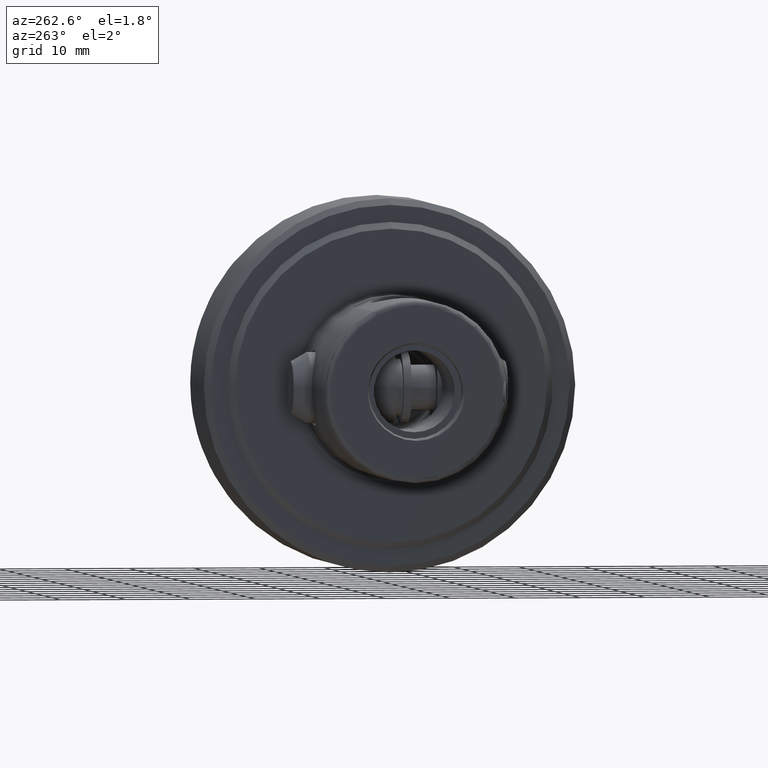
[diagram: clean part render]
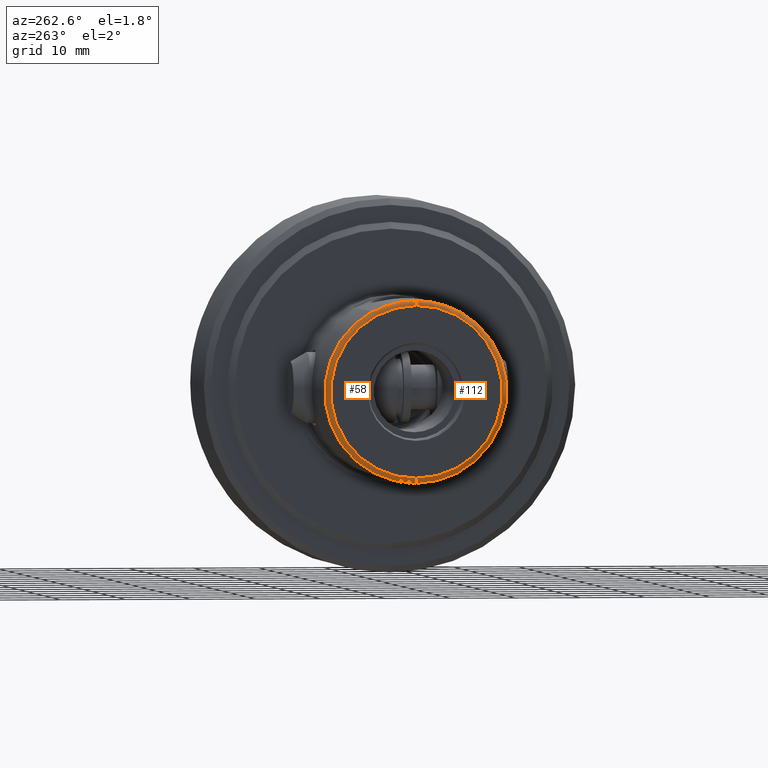
[diagram: same view with one multi-face feature highlighted, each face labeled with its STEP entity id]
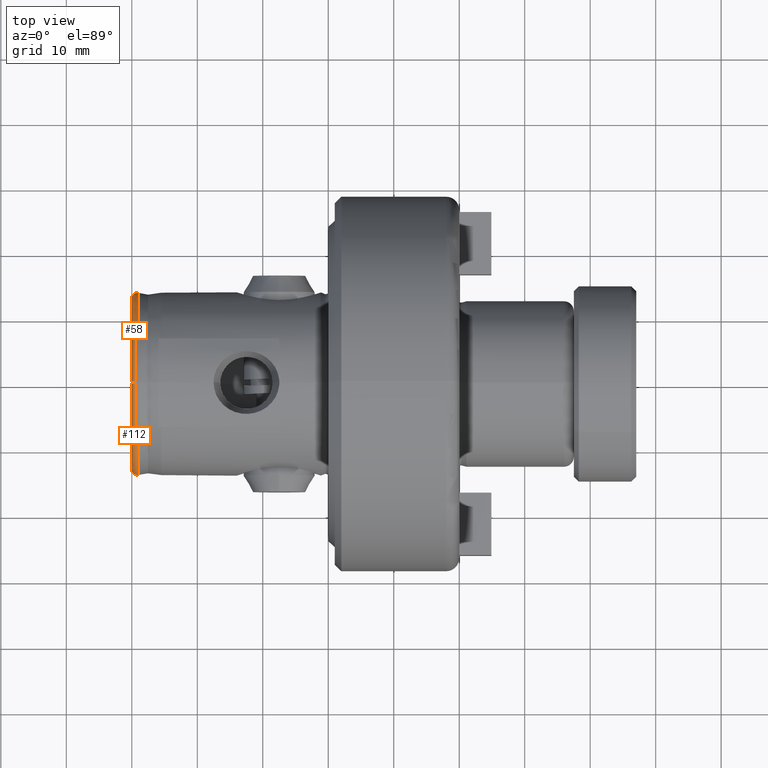
[diagram: same view with one multi-face feature highlighted, each face labeled with its STEP entity id]
A machine part, auxiliary view. The highlighted faces form ONE feature: a constant-radius fillet chain: 2 tangent blend faces with common blend radius 0.8 mm. The faces share edges in the B-rep.
A second angle (top view) of the same feature is appended — it is thin or edge-on in the first view.
Their STEP definitions:
[1] entity #58 (Torus):
#38 = DIRECTION ( 'NONE',  ( -1.000000000000000000, -0.0000000000000000000, -0.0000000000000000000 ) ) ;
#58 = ADVANCED_FACE ( 'NONE', ( #5254 ), #3467, .T. ) ;
#185 = CIRCLE ( 'NONE', #4675, 13.19999999999999600 ) ;
#331 = CARTESIAN_POINT ( 'NONE',  ( 0.8645590794477491200, 6.750000000000001800, 12.26639193067282800 ) ) ;
#431 = CARTESIAN_POINT ( 'NONE',  ( 0.4727386365609338400, 1.132378441801121900E-011, 13.93000000000000000 ) ) ;
#466 = CARTESIAN_POINT ( 'NONE',  ( 0.4929152081133564300, 6.750000000000002700, 12.19529657203607800 ) ) ;
#550 = CARTESIAN_POINT ( 'NONE',  ( 0.8000000000000000400, 0.0000000000000000000, 0.0000000000000000000 ) ) ;
#792 = CARTESIAN_POINT ( 'NONE',  ( 0.4894722717468362200, 6.232143164146207500, 12.48029038539261000 ) ) ;
#936 = EDGE_CURVE ( 'NONE', #5385, #2716, #7338, .T. ) ;
#1129 = ORIENTED_EDGE ( 'NONE', *, *, #2260, .F. ) ;
#1855 = CARTESIAN_POINT ( 'NONE',  ( -7.589415207398531000E-016, 0.0000000000000000000, 0.0000000000000000000 ) ) ;
#1955 = CARTESIAN_POINT ( 'NONE',  ( 0.4727386365609338400, 1.132378441801121900E-011, 13.93000000000000000 ) ) ;
#1973 = EDGE_CURVE ( 'NONE', #7009, #5385, #5504, .T. ) ;
#2080 = EDGE_CURVE ( 'NONE', #7009, #5379, #4514, .T. ) ;
#2105 = CARTESIAN_POINT ( 'NONE',  ( 0.4929152081133564300, 6.750000000000002700, 12.19529657203607800 ) ) ;
#2141 = CARTESIAN_POINT ( 'NONE',  ( -7.589415207398531000E-016, 1.664775441374581700E-015, -13.19999999999999600 ) ) ;
#2159 = CARTESIAN_POINT ( 'NONE',  ( 0.7871886784473950400, 6.750000000000003600, 12.26930041254756900 ) ) ;
#2260 = EDGE_CURVE ( 'NONE', #5148, #2716, #185, .T. ) ;
#2339 = CARTESIAN_POINT ( 'NONE',  ( 0.9389185421335446400, 1.713017107874657800E-015, -13.98784620240976500 ) ) ;
#2484 = DIRECTION ( 'NONE',  ( 0.0000000000000000000, 0.0000000000000000000, 1.000000000000000000 ) ) ;
#2551 = CARTESIAN_POINT ( 'NONE',  ( 0.4814279518564196200, 4.599682551581561400, 13.16597177784444000 ) ) ;
#2619 = ORIENTED_EDGE ( 'NONE', *, *, #2080, .F. ) ;
#2716 = VERTEX_POINT ( 'NONE', #2141 ) ;
#2802 = DIRECTION ( 'NONE',  ( 0.0000000000000000000, -1.224646799147353200E-016, 1.000000000000000000 ) ) ;
#2821 = DIRECTION ( 'NONE',  ( -0.0000000000000000000, 1.000000000000000000, 1.224646799147353200E-016 ) ) ;
#3124 = CARTESIAN_POINT ( 'NONE',  ( 0.4793567522449418400, 4.042877525685580200, 13.34622264103327500 ) ) ;
#3130 = EDGE_LOOP ( 'NONE', ( #7017, #3728, #1129, #6958, #5478, #2619 ) ) ;
#3357 = DIRECTION ( 'NONE',  ( 0.0000000000000000000, 0.0000000000000000000, -1.000000000000000000 ) ) ;
#3372 = CARTESIAN_POINT ( 'NONE',  ( 0.9389185421335446400, 0.0000000000000000000, 0.0000000000000000000 ) ) ;
#3400 = DIRECTION ( 'NONE',  ( 0.0000000000000000000, -1.000000000000000000, 0.0000000000000000000 ) ) ;
#3467 = TOROIDAL_SURFACE ( 'NONE', #4140, 13.19999999999999600, 0.8000000000000008200 ) ;
#3728 = ORIENTED_EDGE ( 'NONE', *, *, #936, .T. ) ;
#3805 = AXIS2_PLACEMENT_3D ( 'NONE', #7591, #3400, #3357 ) ;
#3852 = CARTESIAN_POINT ( 'NONE',  ( 0.4731580748601720800, 1.179496486771234100, 13.89249825202183800 ) ) ;
#3971 = DIRECTION ( 'NONE',  ( -1.000000000000000000, -0.0000000000000000000, -0.0000000000000000000 ) ) ;
#4042 = CARTESIAN_POINT ( 'NONE',  ( 0.5621892141630505700, 6.750000000000002700, 12.22821070456285000 ) ) ;
#4082 = CARTESIAN_POINT ( 'NONE',  ( 0.9389185421335446400, 6.750000000000004400, 12.25142201469973100 ) ) ;
#4140 = AXIS2_PLACEMENT_3D ( 'NONE', #550, #38, #2484 ) ;
#4239 = DIRECTION ( 'NONE',  ( 0.0000000000000000000, 0.0000000000000000000, 1.000000000000000000 ) ) ;
#4330 = EDGE_CURVE ( 'NONE', #5379, #6302, #5123, .T. ) ;
#4514 = B_SPLINE_CURVE_WITH_KNOTS ( 'NONE', 3,
 ( #5185, #331, #2159, #4599, #4042, #2105 ),
 .UNSPECIFIED., .F., .F.,
 ( 4, 2, 4 ),
 ( 0.004875116570112972100, 0.005101595919352251000, 0.005328075268591530800 ),
 .UNSPECIFIED. ) ;
#4599 = CARTESIAN_POINT ( 'NONE',  ( 0.6359658299911510300, 6.750000000000002700, 12.25010238498333600 ) ) ;
#4675 = AXIS2_PLACEMENT_3D ( 'NONE', #1855, #6648, #4239 ) ;
#5123 = B_SPLINE_CURVE_WITH_KNOTS ( 'NONE', 3,
 ( #5665, #792, #5644, #2551, #3124, #6240, #6861, #3852, #6778, #1955 ),
 .UNSPECIFIED., .F., .F.,
 ( 4, 2, 2, 2, 4 ),
 ( 2.279170844210833700E-007, 0.001770647102273941700, 0.003541066287463462600, 0.005311485472652983100, 0.007081904657842503500 ),
 .UNSPECIFIED. ) ;
#5148 = VERTEX_POINT ( 'NONE', #7478 ) ;
#5185 = CARTESIAN_POINT ( 'NONE',  ( 0.9389185421335446400, 6.750000000000004400, 12.25142201469973100 ) ) ;
#5254 = FACE_OUTER_BOUND ( 'NONE', #3130, .T. ) ;
#5366 = AXIS2_PLACEMENT_3D ( 'NONE', #3372, #3971, #7608 ) ;
#5379 = VERTEX_POINT ( 'NONE', #466 ) ;
#5385 = VERTEX_POINT ( 'NONE', #2339 ) ;
#5478 = ORIENTED_EDGE ( 'NONE', *, *, #4330, .F. ) ;
#5504 = CIRCLE ( 'NONE', #5366, 13.98784620240976500 ) ;
#5644 = CARTESIAN_POINT ( 'NONE',  ( 0.4864963569795217600, 5.696888112680258400, 12.73208945097716500 ) ) ;
#5665 = CARTESIAN_POINT ( 'NONE',  ( 0.4929152081133564300, 6.750000000000002700, 12.19529657203607800 ) ) ;
#5766 = CIRCLE ( 'NONE', #3805, 0.8000000000000003800 ) ;
#5774 = CARTESIAN_POINT ( 'NONE',  ( 0.8000000000000000400, 1.616533774874505800E-015, -13.19999999999999600 ) ) ;
#6240 = CARTESIAN_POINT ( 'NONE',  ( 0.4760502033241162900, 2.913435308332109000, 13.63590322983608000 ) ) ;
#6302 = VERTEX_POINT ( 'NONE', #431 ) ;
#6648 = DIRECTION ( 'NONE',  ( -1.000000000000000000, -0.0000000000000000000, -0.0000000000000000000 ) ) ;
#6739 = EDGE_CURVE ( 'NONE', #6302, #5148, #5766, .T. ) ;
#6778 = CARTESIAN_POINT ( 'NONE',  ( 0.4727386365609392300, 0.5867613276940799600, 13.92999999999952500 ) ) ;
#6861 = CARTESIAN_POINT ( 'NONE',  ( 0.4748152716050593200, 2.340796626378782300, 13.74532629198283700 ) ) ;
#6958 = ORIENTED_EDGE ( 'NONE', *, *, #6739, .F. ) ;
#7009 = VERTEX_POINT ( 'NONE', #4082 ) ;
#7017 = ORIENTED_EDGE ( 'NONE', *, *, #1973, .T. ) ;
#7256 = AXIS2_PLACEMENT_3D ( 'NONE', #5774, #2821, #2802 ) ;
#7338 = CIRCLE ( 'NONE', #7256, 0.8000000000000003800 ) ;
#7478 = CARTESIAN_POINT ( 'NONE',  ( -7.589415207398531000E-016, 0.0000000000000000000, 13.19999999999999600 ) ) ;
#7591 = CARTESIAN_POINT ( 'NONE',  ( 0.8000000000000000400, 0.0000000000000000000, 13.19999999999999600 ) ) ;
#7608 = DIRECTION ( 'NONE',  ( 0.0000000000000000000, 0.0000000000000000000, 1.000000000000000000 ) ) ;
[2] entity #112 (Torus):
#112 = ADVANCED_FACE ( 'NONE', ( #7349 ), #1751, .T. ) ;
#131 = CARTESIAN_POINT ( 'NONE',  ( 0.4814524739321879300, -4.605526879116308000, 13.16385748840265400 ) ) ;
#215 = CARTESIAN_POINT ( 'NONE',  ( 0.4894700447171464500, -6.231808193520813600, 12.48047473085147800 ) ) ;
#290 = ORIENTED_EDGE ( 'NONE', *, *, #6739, .T. ) ;
#431 = CARTESIAN_POINT ( 'NONE',  ( 0.4727386365609338400, 1.132378441801121900E-011, 13.93000000000000000 ) ) ;
#669 = VERTEX_POINT ( 'NONE', #1806 ) ;
#728 = EDGE_CURVE ( 'NONE', #2716, #5148, #6580, .T. ) ;
#936 = EDGE_CURVE ( 'NONE', #5385, #2716, #7338, .T. ) ;
#1330 = ORIENTED_EDGE ( 'NONE', *, *, #6631, .F. ) ;
#1415 = CARTESIAN_POINT ( 'NONE',  ( 0.4727386365609231300, -1.174282714772624200, 13.93000000000094700 ) ) ;
#1417 = CARTESIAN_POINT ( 'NONE',  ( 0.6360166110138139000, -6.750000000000000900, 12.25009233058448800 ) ) ;
#1751 = TOROIDAL_SURFACE ( 'NONE', #6154, 13.19999999999999600, 0.8000000000000008200 ) ;
#1777 = EDGE_CURVE ( 'NONE', #5385, #669, #2213, .T. ) ;
#1806 = CARTESIAN_POINT ( 'NONE',  ( 0.9389185421335405300, -6.750000000000000000, 12.25142201469977200 ) ) ;
#2059 = CARTESIAN_POINT ( 'NONE',  ( 0.4727386365609338400, 1.132378441801121900E-011, 13.93000000000000000 ) ) ;
#2141 = CARTESIAN_POINT ( 'NONE',  ( -7.589415207398531000E-016, 1.664775441374581700E-015, -13.19999999999999600 ) ) ;
#2213 = CIRCLE ( 'NONE', #7467, 13.98784620240976500 ) ;
#2339 = CARTESIAN_POINT ( 'NONE',  ( 0.9389185421335446400, 1.713017107874657800E-015, -13.98784620240976500 ) ) ;
#2417 = CARTESIAN_POINT ( 'NONE',  ( 0.4929152081133217300, -6.749999999999996400, 12.19529657203608200 ) ) ;
#2567 = CARTESIAN_POINT ( 'NONE',  ( 0.4793481883614230100, -4.041190702449638300, 13.34696217243495100 ) ) ;
#2629 = CARTESIAN_POINT ( 'NONE',  ( 0.8642009777304905400, -6.750000000000000900, 12.26646402307943800 ) ) ;
#2716 = VERTEX_POINT ( 'NONE', #2141 ) ;
#2802 = DIRECTION ( 'NONE',  ( 0.0000000000000000000, -1.224646799147353200E-016, 1.000000000000000000 ) ) ;
#2821 = DIRECTION ( 'NONE',  ( -0.0000000000000000000, 1.000000000000000000, 1.224646799147353200E-016 ) ) ;
#3026 = CARTESIAN_POINT ( 'NONE',  ( 0.9389185421335446400, 0.0000000000000000000, 0.0000000000000000000 ) ) ;
#3063 = DIRECTION ( 'NONE',  ( -1.000000000000000000, -0.0000000000000000000, -0.0000000000000000000 ) ) ;
#3222 = CARTESIAN_POINT ( 'NONE',  ( 0.7868371776198326300, -6.750000000000000000, 12.26927225712829600 ) ) ;
#3340 = ORIENTED_EDGE ( 'NONE', *, *, #936, .F. ) ;
#3357 = DIRECTION ( 'NONE',  ( 0.0000000000000000000, 0.0000000000000000000, -1.000000000000000000 ) ) ;
#3400 = DIRECTION ( 'NONE',  ( 0.0000000000000000000, -1.000000000000000000, 0.0000000000000000000 ) ) ;
#3697 = AXIS2_PLACEMENT_3D ( 'NONE', #6729, #4392, #6210 ) ;
#3753 = CARTESIAN_POINT ( 'NONE',  ( 0.5615467128745314000, -6.749999999999999100, 12.22790543316666000 ) ) ;
#3805 = AXIS2_PLACEMENT_3D ( 'NONE', #7591, #3400, #3357 ) ;
#3807 = CARTESIAN_POINT ( 'NONE',  ( 0.9389185421335405300, -6.750000000000000000, 12.25142201469977200 ) ) ;
#4244 = DIRECTION ( 'NONE',  ( 0.0000000000000000000, 0.0000000000000000000, 1.000000000000000000 ) ) ;
#4392 = DIRECTION ( 'NONE',  ( -1.000000000000000000, -0.0000000000000000000, -0.0000000000000000000 ) ) ;
#4727 = EDGE_CURVE ( 'NONE', #7877, #669, #7015, .T. ) ;
#5001 = CARTESIAN_POINT ( 'NONE',  ( 0.4865094222191128100, -5.699176667825200900, 12.73098617945237100 ) ) ;
#5148 = VERTEX_POINT ( 'NONE', #7478 ) ;
#5298 = ORIENTED_EDGE ( 'NONE', *, *, #1777, .T. ) ;
#5385 = VERTEX_POINT ( 'NONE', #2339 ) ;
#5766 = CIRCLE ( 'NONE', #3805, 0.8000000000000003800 ) ;
#5774 = CARTESIAN_POINT ( 'NONE',  ( 0.8000000000000000400, 1.616533774874505800E-015, -13.19999999999999600 ) ) ;
#5983 = DIRECTION ( 'NONE',  ( 0.0000000000000000000, 0.0000000000000000000, 1.000000000000000000 ) ) ;
#6154 = AXIS2_PLACEMENT_3D ( 'NONE', #7878, #3063, #4244 ) ;
#6210 = DIRECTION ( 'NONE',  ( 0.0000000000000000000, 0.0000000000000000000, 1.000000000000000000 ) ) ;
#6236 = CARTESIAN_POINT ( 'NONE',  ( 0.4929152081133217300, -6.749999999999996400, 12.19529657203608200 ) ) ;
#6302 = VERTEX_POINT ( 'NONE', #431 ) ;
#6580 = CIRCLE ( 'NONE', #3697, 13.19999999999999600 ) ;
#6631 = EDGE_CURVE ( 'NONE', #6302, #7877, #7752, .T. ) ;
#6729 = CARTESIAN_POINT ( 'NONE',  ( -7.589415207398531000E-016, 0.0000000000000000000, 0.0000000000000000000 ) ) ;
#6739 = EDGE_CURVE ( 'NONE', #6302, #5148, #5766, .T. ) ;
#6790 = CARTESIAN_POINT ( 'NONE',  ( 0.4929152081133217300, -6.749999999999996400, 12.19529657203608200 ) ) ;
#7015 = B_SPLINE_CURVE_WITH_KNOTS ( 'NONE', 3,
 ( #6236, #3753, #1417, #3222, #2629, #3807 ),
 .UNSPECIFIED., .F., .F.,
 ( 4, 2, 4 ),
 ( 8.632558505923890000E-005, 0.0003140090900236662200, 0.0005416925949880936000 ),
 .UNSPECIFIED. ) ;
#7141 = EDGE_LOOP ( 'NONE', ( #3340, #5298, #7867, #1330, #290, #7638 ) ) ;
#7256 = AXIS2_PLACEMENT_3D ( 'NONE', #5774, #2821, #2802 ) ;
#7263 = DIRECTION ( 'NONE',  ( -1.000000000000000000, -0.0000000000000000000, -0.0000000000000000000 ) ) ;
#7338 = CIRCLE ( 'NONE', #7256, 0.8000000000000003800 ) ;
#7349 = FACE_OUTER_BOUND ( 'NONE', #7141, .T. ) ;
#7467 = AXIS2_PLACEMENT_3D ( 'NONE', #3026, #7263, #5983 ) ;
#7478 = CARTESIAN_POINT ( 'NONE',  ( -7.589415207398531000E-016, 0.0000000000000000000, 13.19999999999999600 ) ) ;
#7487 = CARTESIAN_POINT ( 'NONE',  ( 0.4743535687071777100, -2.331403930311188400, 13.78456389188025700 ) ) ;
#7591 = CARTESIAN_POINT ( 'NONE',  ( 0.8000000000000000400, 0.0000000000000000000, 13.19999999999999600 ) ) ;
#7638 = ORIENTED_EDGE ( 'NONE', *, *, #728, .F. ) ;
#7752 = B_SPLINE_CURVE_WITH_KNOTS ( 'NONE', 3,
 ( #2059, #1415, #7487, #2567, #131, #5001, #215, #6790 ),
 .UNSPECIFIED., .F., .F.,
 ( 4, 2, 2, 4 ),
 ( 0.007081904657842503500, 0.01062503633507869000, 0.01239660217369678200, 0.01416816801231487500 ),
 .UNSPECIFIED. ) ;
#7867 = ORIENTED_EDGE ( 'NONE', *, *, #4727, .F. ) ;
#7877 = VERTEX_POINT ( 'NONE', #2417 ) ;
#7878 = CARTESIAN_POINT ( 'NONE',  ( 0.8000000000000000400, 0.0000000000000000000, 0.0000000000000000000 ) ) ;